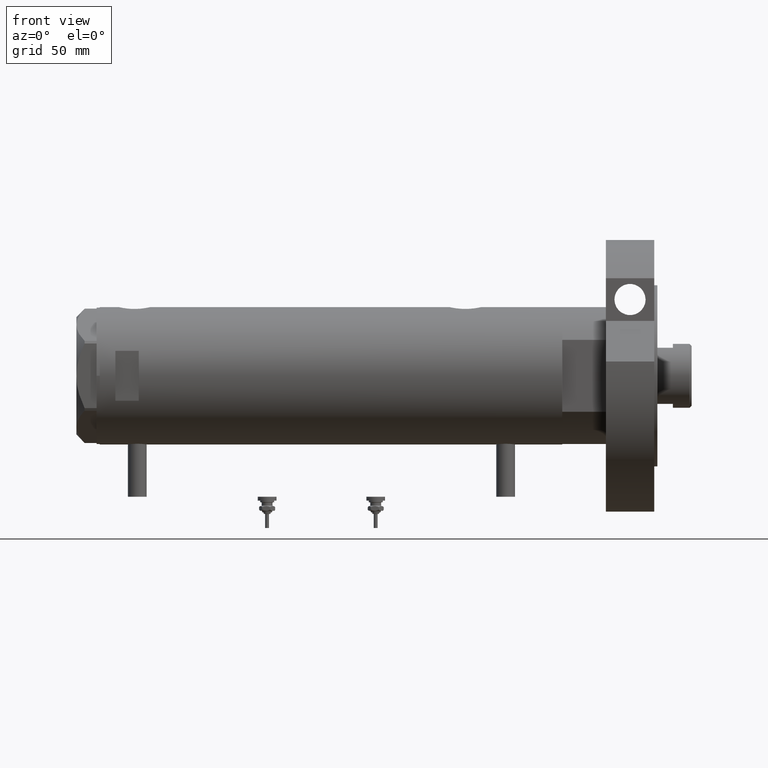
[diagram: clean part render]
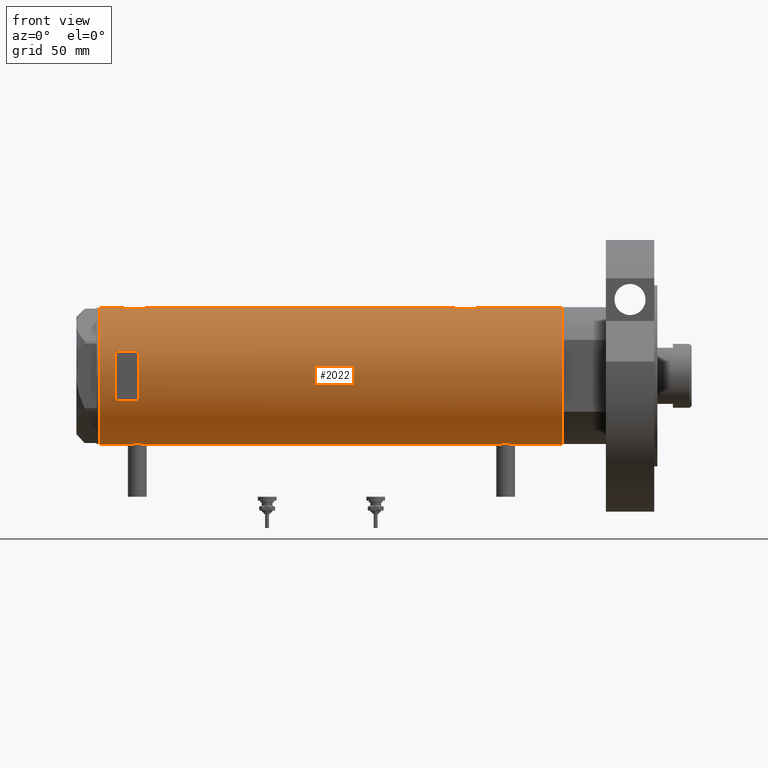
[diagram: same view with one face highlighted and labeled with its STEP entity id]
A machine part, front view. The second image highlights one B-rep face of the part: STEP entity #2022.
In plain terms, the highlighted cylindrical surface (partial cylindrical patch) has radius 44 mm, axis along (-1, -0, 0).
Its self-contained STEP definition (entity closure, byte-faithful):
#8 = CARTESIAN_POINT ( 'NONE',  ( 44.00000000000000000, -3.917104602093038540E-21, -76.10000000000000853 ) ) ;
#95 = CARTESIAN_POINT ( 'NONE',  ( -15.96871942267132027, -40.99999999999999289, 123.1999999999999744 ) ) ;
#146 = DIRECTION ( 'NONE',  ( -0.000000000000000000, 0.000000000000000000, -1.000000000000000000 ) ) ;
#147 = EDGE_CURVE ( 'NONE', #6987, #3374, #3652, .T. ) ;
#165 = CARTESIAN_POINT ( 'NONE',  ( -43.55380622335314200, -6.250277076879244831, 124.6088983339019194 ) ) ;
#167 = CARTESIAN_POINT ( 'NONE',  ( 42.84860178791323193, -9.999866241079301332, 126.2339638269416895 ) ) ;
#198 = CARTESIAN_POINT ( 'NONE',  ( -43.97029046111976669, -1.628482392291942471, 130.2375861979205354 ) ) ;
#228 = CARTESIAN_POINT ( 'NONE',  ( 43.46477581456301920, -6.845969322274847890, -93.39644460123308534 ) ) ;
#230 = CARTESIAN_POINT ( 'NONE',  ( -43.74870614644076738, -4.704745394280562820, 120.0655351265997410 ) ) ;
#259 = EDGE_CURVE ( 'NONE', #507, #5356, #5120, .T. ) ;
#288 = CARTESIAN_POINT ( 'NONE',  ( -43.95442538259509746, -2.011679190499023662, -117.8209354650977616 ) ) ;
#303 = CARTESIAN_POINT ( 'NONE',  ( 43.92391465552168484, -2.605621203777308104, -95.76018015101779213 ) ) ;
#322 = CARTESIAN_POINT ( 'NONE',  ( -43.83513771791772484, -3.820747781112549202, -106.9367898170362565 ) ) ;
#332 = CARTESIAN_POINT ( 'NONE',  ( 42.96573602780769363, -9.487415353952519226, 122.6726545541638274 ) ) ;
#336 = CARTESIAN_POINT ( 'NONE',  ( 42.84860178791321772, -9.999866241079296003, -85.76603617305838156 ) ) ;
#347 = VERTEX_POINT ( 'NONE', #6582 ) ;
#360 = CARTESIAN_POINT ( 'NONE',  ( -43.97755541524606571, -1.419649999726221967, -117.9901114392363439 ) ) ;
#373 = CARTESIAN_POINT ( 'NONE',  ( 42.89003040145177437, -9.821289533110936887, 127.8649162832999622 ) ) ;
#414 = CARTESIAN_POINT ( 'NONE',  ( 43.39114022679084570, -7.298186114522522416, 132.7441727949206438 ) ) ;
#507 = VERTEX_POINT ( 'NONE', #5698 ) ;
#636 = EDGE_CURVE ( 'NONE', #5910, #1283, #2645, .T. ) ;
#645 = EDGE_CURVE ( 'NONE', #784, #6135, #4715, .T. ) ;
#728 = CARTESIAN_POINT ( 'NONE',  ( -43.95442538259508325, -2.011679190499021885, 118.2790645349021617 ) ) ;
#759 = CARTESIAN_POINT ( 'NONE',  ( -43.91398925748692506, -2.775454910411446541, 129.8147077568106624 ) ) ;
#762 = CARTESIAN_POINT ( 'NONE',  ( 43.13833976206232990, -8.672905216733560962, 130.9203292102081377 ) ) ;
#784 = VERTEX_POINT ( 'NONE', #5398 ) ;
#796 = CARTESIAN_POINT ( 'NONE',  ( 43.85817087158034866, -3.542878095418174667, -95.45703661115521754 ) ) ;
#876 = ORIENTED_EDGE ( 'NONE', *, *, #259, .T. ) ;
#885 = CARTESIAN_POINT ( 'NONE',  ( -43.64013512596971367, -5.618144550806293047, -109.1311574562683404 ) ) ;
#895 = CARTESIAN_POINT ( 'NONE',  ( 43.80655905412561424, -4.132395729537634566, 135.0120532619376377 ) ) ;
#900 = CARTESIAN_POINT ( 'NONE',  ( 42.86761451923556621, -9.918101748202653667, -84.78132476450375066 ) ) ;
#929 = CARTESIAN_POINT ( 'NONE',  ( 42.96858625215908489, -9.471543237354838496, 129.1244477931078336 ) ) ;
#934 = CARTESIAN_POINT ( 'NONE',  ( 43.07447880731469780, -8.980869115410037296, -81.65290029795900750 ) ) ;
#958 = CARTESIAN_POINT ( 'NONE',  ( -43.55388615229803406, -6.249720082677240107, -112.3173251411198379 ) ) ;
#1070 = DIRECTION ( 'NONE',  ( 0.000000000000000000, 0.000000000000000000, 1.000000000000000000 ) ) ;
#1111 = DIRECTION ( 'NONE',  ( 0.000000000000000000, 0.000000000000000000, 1.000000000000000000 ) ) ;
#1124 = CARTESIAN_POINT ( 'NONE',  ( 44.00000000000000000, -1.726036355082439716E-15, 115.9000000000000199 ) ) ;
#1133 = EDGE_CURVE ( 'NONE', #4129, #784, #4867, .T. ) ;
#1172 = AXIS2_PLACEMENT_3D ( 'NONE', #5636, #2611, #6791 ) ;
#1189 = ORIENTED_EDGE ( 'NONE', *, *, #4840, .T. ) ;
#1214 = EDGE_CURVE ( 'NONE', #3508, #5356, #6574, .T. ) ;
#1250 = CARTESIAN_POINT ( 'NONE',  ( -43.66524845950888789, -5.422010366683132965, 121.0646195664701850 ) ) ;
#1253 = CARTESIAN_POINT ( 'NONE',  ( 44.00000000000000000, 0.000000000000000000, -148.1999999999999886 ) ) ;
#1278 = B_SPLINE_CURVE_WITH_KNOTS ( 'NONE', 3,
 ( #3736, #3164, #3202, #360, #1950, #288, #6696, #4873, #5496, #4434, #2676, #1529, #4396, #4318, #4909, #4989, #3772, #2106, #4284, #3857, #6184, #958, #3283, #5617, #2519, #1451, #6075, #6113, #885, #6617, #1411, #5534, #6736, #322, #2632, #1494, #3818, #1378, #6144, #3696, #6034, #3124, #5100 ),
 .UNSPECIFIED., .F., .F.,
 ( 4, 2, 2, 1, 2, 2, 2, 2, 2, 2, 2, 2, 2, 2, 2, 2, 2, 2, 2, 2, 2, 4 ),
 ( 0.01956509074799517994, 0.02078761141254040559, 0.02139887174481301668, 0.02201013207708563124, 0.02262139240935824580, 0.02323265274163085689, 0.02445517340617610336, 0.02567769407072134982, 0.02690021473526659629, 0.02751147506753922126, 0.02812273539981184622, 0.02934525606435713085, 0.03056777672890241548, 0.03117903706117506127, 0.03179029739344770011, 0.03301281805799302638, 0.03423533872253835264, 0.03545785938708367196, 0.03668038005162899129, 0.03729164038390166136, 0.03790290071617432449, 0.03912542138071965075 ),
 .UNSPECIFIED. ) ;
#1282 = CARTESIAN_POINT ( 'NONE',  ( -43.57664920749031978, -6.089110472216502146, 122.7763691313058985 ) ) ;
#1283 = VERTEX_POINT ( 'NONE', #1960 ) ;
#1284 = CARTESIAN_POINT ( 'NONE',  ( 43.46477581456304051, -6.845969322274839008, 118.6035553987669147 ) ) ;
#1318 = CARTESIAN_POINT ( 'NONE',  ( -43.64064219598290606, -5.614224114468902904, 121.4231451038052683 ) ) ;
#1319 = CARTESIAN_POINT ( 'NONE',  ( 43.07447880731469780, -8.980869115410031966, 130.3470997020410209 ) ) ;
#1359 = CARTESIAN_POINT ( 'NONE',  ( 42.92612181419237771, -9.662173761604313071, 128.4979978960971323 ) ) ;
#1378 = CARTESIAN_POINT ( 'NONE',  ( -43.95404166778755695, -2.020054257598466574, -105.9819105451434638 ) ) ;
#1389 = CARTESIAN_POINT ( 'NONE',  ( 42.86369059155249772, -9.935849517229277339, -87.40637410018203468 ) ) ;
#1391 = CARTESIAN_POINT ( 'NONE',  ( -43.97755541524607992, -1.419649999726221745, 118.1098885607636646 ) ) ;
#1407 = DIRECTION ( 'NONE',  ( 0.000000000000000000, 0.000000000000000000, 1.000000000000000000 ) ) ;
#1411 = CARTESIAN_POINT ( 'NONE',  ( -43.71863308610073773, -4.973248429199020215, -108.0926220987882687 ) ) ;
#1451 = CARTESIAN_POINT ( 'NONE',  ( -43.58327167020068060, -6.041691433183235205, -110.2867244921663428 ) ) ;
#1469 = CARTESIAN_POINT ( 'NONE',  ( 43.80655905412562134, -4.132395729537634566, -76.98794673806234812 ) ) ;
#1494 = CARTESIAN_POINT ( 'NONE',  ( -43.91398925748691084, -2.775454910411443876, -106.2852922431893319 ) ) ;
#1505 = CARTESIAN_POINT ( 'NONE',  ( 44.00000000000000000, -3.917205576288906830E-21, 135.9000000000000341 ) ) ;
#1509 = CARTESIAN_POINT ( 'NONE',  ( 43.13833976206232990, -8.672905216733550304, -81.07967078979186226 ) ) ;
#1529 = CARTESIAN_POINT ( 'NONE',  ( -43.80686114384900520, -4.128296917151112133, -116.6101585512831207 ) ) ;
#1546 = CARTESIAN_POINT ( 'NONE',  ( 43.77905627191558580, -4.445085099228550440, -95.08140834316036205 ) ) ;
#1549 = VERTEX_POINT ( 'NONE', #5899 ) ;
#1560 = EDGE_CURVE ( 'NONE', #1549, #4872, #1278, .T. ) ;
#1573 = CARTESIAN_POINT ( 'NONE',  ( -44.00000000000000000, 4.742435893011557518E-16, -105.6499999999999915 ) ) ;
#1582 = ORIENTED_EDGE ( 'NONE', *, *, #5455, .T. ) ;
#1688 = DIRECTION ( 'NONE',  ( 1.000000000000000000, 0.000000000000000000, 0.000000000000000000 ) ) ;
#1776 = LINE ( 'NONE', #6404, #2167 ) ;
#1792 = AXIS2_PLACEMENT_3D ( 'NONE', #7089, #7132, #5966 ) ;
#1821 = CARTESIAN_POINT ( 'NONE',  ( -43.58327167020067350, -6.041691433183231652, 125.8132755078336658 ) ) ;
#1864 = CARTESIAN_POINT ( 'NONE',  ( 43.50370990764397305, -6.606474645717115735, 133.4352093528489149 ) ) ;
#1893 = CARTESIAN_POINT ( 'NONE',  ( -43.83513771791772484, -3.820747781112540764, 129.1632101829637236 ) ) ;
#1896 = CARTESIAN_POINT ( 'NONE',  ( 43.88203303552249679, -3.235230624304762603, 116.4320738693601811 ) ) ;
#1908 = LINE ( 'NONE', #4239, #5329 ) ;
#1941 = AXIS2_PLACEMENT_3D ( 'NONE', #5778, #1070, #1688 ) ;
#1950 = CARTESIAN_POINT ( 'NONE',  ( -43.97059312650996787, -1.620278982928820888, -117.9397869138586827 ) ) ;
#1952 = DIRECTION ( 'NONE',  ( 0.000000000000000000, 0.000000000000000000, 1.000000000000000000 ) ) ;
#1960 = CARTESIAN_POINT ( 'NONE',  ( 44.00000000000000000, 0.000000000000000000, 148.1999999999999886 ) ) ;
#1972 = CARTESIAN_POINT ( 'NONE',  ( -43.57636709704393496, -6.091127289750671636, 125.6149932566098215 ) ) ;
#2004 = CARTESIAN_POINT ( 'NONE',  ( 42.92612181419234219, -9.662173761604309519, -83.50200210390283928 ) ) ;
#2022 = ADVANCED_FACE ( 'NONE', ( #3875, #4414 ), #6089, .T. ) ;
#2041 = CARTESIAN_POINT ( 'NONE',  ( 43.24269204559829660, -8.130405600641545050, -80.26885497193008234 ) ) ;
#2080 = CARTESIAN_POINT ( 'NONE',  ( 43.99999999999998579, -0.6628808997490075461, 115.8999999999999915 ) ) ;
#2106 = CARTESIAN_POINT ( 'NONE',  ( -43.59994860325051036, -5.920144153815573240, -113.9140635756975968 ) ) ;
#2121 = CARTESIAN_POINT ( 'NONE',  ( 43.77763691689009562, -4.427538730370028652, 134.8724271220806656 ) ) ;
#2125 = CARTESIAN_POINT ( 'NONE',  ( 43.35257225115238811, -7.523216248090025537, -92.69605303592345535 ) ) ;
#2133 = ORIENTED_EDGE ( 'NONE', *, *, #3137, .F. ) ;
#2167 = VECTOR ( 'NONE', #2917, 1000.000000000000000 ) ;
#2273 = ORIENTED_EDGE ( 'NONE', *, *, #5634, .F. ) ;
#2347 = CARTESIAN_POINT ( 'NONE',  ( 44.00000000000000000, -0.6537011444665536963, -76.10000000000002274 ) ) ;
#2390 = CARTESIAN_POINT ( 'NONE',  ( -43.55388615229802696, -6.249720082677238331, 123.7826748588801564 ) ) ;
#2427 = CARTESIAN_POINT ( 'NONE',  ( -43.83572624786196315, -3.813948911733267888, 119.2316356977933651 ) ) ;
#2466 = CARTESIAN_POINT ( 'NONE',  ( -43.80686114384899810, -4.128296917151109469, 119.4898414487168878 ) ) ;
#2468 = CARTESIAN_POINT ( 'NONE',  ( 43.77905627191559290, -4.445085099228545111, 116.9185916568396806 ) ) ;
#2499 = CARTESIAN_POINT ( 'NONE',  ( -43.97729452866926891, -1.427712738744846055, 130.2882290744342981 ) ) ;
#2502 = CARTESIAN_POINT ( 'NONE',  ( 42.86369059155248351, -9.935849517229273786, 124.5936258998180222 ) ) ;
#2503 = DIRECTION ( 'NONE',  ( -1.000000000000000000, 0.000000000000000000, 0.000000000000000000 ) ) ;
#2519 = CARTESIAN_POINT ( 'NONE',  ( -43.57636709704394917, -6.091127289750676077, -110.4850067433901586 ) ) ;
#2536 = CARTESIAN_POINT ( 'NONE',  ( 43.77763691689010273, -4.427538730370040199, -77.12757287791932015 ) ) ;
#2578 = CARTESIAN_POINT ( 'NONE',  ( 42.85249883256043546, -9.983208936152868418, -85.43427783458179192 ) ) ;
#2584 = EDGE_CURVE ( 'NONE', #6135, #5477, #1776, .T. ) ;
#2603 = CARTESIAN_POINT ( 'NONE',  ( 44.00000000000000000, -1.726036355082439716E-15, 115.9000000000000199 ) ) ;
#2611 = DIRECTION ( 'NONE',  ( 0.000000000000000000, 0.000000000000000000, 1.000000000000000000 ) ) ;
#2613 = CARTESIAN_POINT ( 'NONE',  ( 43.39001814939470592, -7.304817421876465211, -92.93703460671677874 ) ) ;
#2632 = CARTESIAN_POINT ( 'NONE',  ( -43.88932649443422918, -3.137583818903199262, -106.4790096194045788 ) ) ;
#2645 = CIRCLE ( 'NONE', #1792, 44.00000000000000000 ) ;
#2676 = CARTESIAN_POINT ( 'NONE',  ( -43.83572624786197025, -3.813948911733268776, -116.8683643022066150 ) ) ;
#2692 = CARTESIAN_POINT ( 'NONE',  ( 43.98543813568862504, -1.304985013906734048, 135.8365306627388236 ) ) ;
#2697 = CARTESIAN_POINT ( 'NONE',  ( 43.13689707656756411, -8.680169016269173810, -91.10836902111202562 ) ) ;
#2817 = CIRCLE ( 'NONE', #3771, 44.00000000000000000 ) ;
#2850 = EDGE_LOOP ( 'NONE', ( #2133, #1189, #876, #4011, #1582, #4285, #6853, #4203, #2985, #5027, #7499, #5960 ) ) ;
#2917 = DIRECTION ( 'NONE',  ( -0.000000000000000000, -0.000000000000000000, -1.000000000000000000 ) ) ;
#2956 = VERTEX_POINT ( 'NONE', #4709 ) ;
#2969 = DIRECTION ( 'NONE',  ( 0.000000000000000000, 0.000000000000000000, 1.000000000000000000 ) ) ;
#2985 = ORIENTED_EDGE ( 'NONE', *, *, #4894, .F. ) ;
#3035 = CARTESIAN_POINT ( 'NONE',  ( -43.55981666146649900, -6.208773019004407701, 123.3756200080638195 ) ) ;
#3039 = CARTESIAN_POINT ( 'NONE',  ( 43.39001814939471302, -7.304817421876452777, 119.0629653932832497 ) ) ;
#3071 = CARTESIAN_POINT ( 'NONE',  ( -43.94477385411916259, -2.211843467998029222, 130.0490722992286408 ) ) ;
#3072 = CARTESIAN_POINT ( 'NONE',  ( 43.92776409818819872, -2.602555515054473467, 135.5780334928707589 ) ) ;
#3103 = CARTESIAN_POINT ( 'NONE',  ( 43.94187300917954531, -2.283844398366611905, -95.84126046817046074 ) ) ;
#3105 = CARTESIAN_POINT ( 'NONE',  ( -44.00000000000000000, 5.388445781982983516E-15, 117.9500000000000028 ) ) ;
#3124 = CARTESIAN_POINT ( 'NONE',  ( -44.00000000000000711, -0.4134142287044808017, -105.6500000000000057 ) ) ;
#3137 = EDGE_CURVE ( 'NONE', #347, #1549, #6666, .T. ) ;
#3164 = CARTESIAN_POINT ( 'NONE',  ( -44.00000000000001421, -0.4080709675389184166, -118.1500000000000341 ) ) ;
#3182 = CARTESIAN_POINT ( 'NONE',  ( 43.39114022679083860, -7.298186114522535739, -79.25582720507938461 ) ) ;
#3202 = CARTESIAN_POINT ( 'NONE',  ( -43.99432382855034973, -0.8140126287075730716, -118.1104216681691526 ) ) ;
#3214 = CARTESIAN_POINT ( 'NONE',  ( 42.85249883256044257, -9.983208936152875523, 126.5657221654182791 ) ) ;
#3221 = CARTESIAN_POINT ( 'NONE',  ( -43.99999999999999289, -0.4134142287044815789, 130.4500000000000455 ) ) ;
#3260 = CARTESIAN_POINT ( 'NONE',  ( 43.07321175413309788, -8.986876637256990819, -90.53428201988754154 ) ) ;
#3283 = CARTESIAN_POINT ( 'NONE',  ( -43.55380622335315621, -6.250277076879243943, -111.4911016660981176 ) ) ;
#3296 = CARTESIAN_POINT ( 'NONE',  ( 43.71528002050701645, -5.005885132985630648, 134.5630630671448955 ) ) ;
#3374 = VERTEX_POINT ( 'NONE', #4071 ) ;
#3419 = CARTESIAN_POINT ( 'NONE',  ( 44.00000000000000000, 0.000000000000000000, -148.1999999999999886 ) ) ;
#3456 = CARTESIAN_POINT ( 'NONE',  ( -44.00000000000000000, 5.388445916248353619E-15, 148.1999999999999886 ) ) ;
#3505 = EDGE_CURVE ( 'NONE', #2956, #1283, #4949, .T. ) ;
#3508 = VERTEX_POINT ( 'NONE', #5581 ) ;
#3529 = VECTOR ( 'NONE', #1111, 1000.000000000000000 ) ;
#3571 = CARTESIAN_POINT ( 'NONE',  ( -43.88927795770376150, -3.124736516396337205, 118.7833259507619630 ) ) ;
#3597 = ORIENTED_EDGE ( 'NONE', *, *, #645, .F. ) ;
#3607 = CARTESIAN_POINT ( 'NONE',  ( 43.57790701154752355, -6.104591320335862825, 133.8474130089493315 ) ) ;
#3634 = EDGE_CURVE ( 'NONE', #4872, #6987, #1908, .T. ) ;
#3652 = B_SPLINE_CURVE_WITH_KNOTS ( 'NONE', 3,
 ( #3105, #5430, #7229, #1391, #4717, #728, #5880, #5284, #3571, #5316, #2427, #2466, #230, #4754, #1250, #1318, #5395, #4189, #6516, #1282, #3035, #2390, #165, #4852, #1972, #1821, #7073, #6595, #4786, #4259, #4303, #7148, #6633, #1893, #5983, #759, #3071, #7188, #198, #2499, #4819, #3221, #6207 ),
 .UNSPECIFIED., .F., .F.,
 ( 4, 2, 2, 1, 2, 2, 2, 2, 2, 2, 2, 2, 2, 2, 2, 2, 2, 2, 2, 2, 2, 4 ),
 ( 0.01956509074799516260, 0.02078761141254046457, 0.02139887174481311383, 0.02201013207708576655, 0.02262139240935841580, 0.02323265274163106506, 0.02445517340617638785, 0.02567769407072171411, 0.02690021473526703691, 0.02751147506753969657, 0.02812273539981235970, 0.02934525606435772760, 0.03056777672890308856, 0.03117903706117573087, 0.03179029739344837319, 0.03301281805799358149, 0.03423533872253878979, 0.03545785938708399809, 0.03668038005162919946, 0.03729164038390180014, 0.03790290071617440082, 0.03912542138071962300 ),
 .UNSPECIFIED. ) ;
#3659 = DIRECTION ( 'NONE',  ( 1.000000000000000000, 0.000000000000000000, 0.000000000000000000 ) ) ;
#3696 = CARTESIAN_POINT ( 'NONE',  ( -43.97729452866927602, -1.427712738744854715, -105.8117709255657815 ) ) ;
#3698 = CARTESIAN_POINT ( 'NONE',  ( 44.00000000000000000, 0.000000000000000000, -148.1999999999999886 ) ) ;
#3736 = CARTESIAN_POINT ( 'NONE',  ( -44.00000000000000000, 5.388445781982983516E-15, -118.1500000000000057 ) ) ;
#3771 = AXIS2_PLACEMENT_3D ( 'NONE', #4855, #6556, #2503 ) ;
#3772 = CARTESIAN_POINT ( 'NONE',  ( -43.60943079847655213, -5.850114217193378430, -114.1092187592660849 ) ) ;
#3790 = CARTESIAN_POINT ( 'NONE',  ( -15.96871942267132027, -40.99999999999999289, 138.1999999999999886 ) ) ;
#3796 = CARTESIAN_POINT ( 'NONE',  ( 43.57790701154753066, -6.104591320335878812, -78.15258699105068274 ) ) ;
#3818 = CARTESIAN_POINT ( 'NONE',  ( -43.94477385411916970, -2.211843467998029666, -106.0509277007713678 ) ) ;
#3826 = EDGE_LOOP ( 'NONE', ( #2273, #4074, #3597, #4818 ) ) ;
#3827 = CARTESIAN_POINT ( 'NONE',  ( -44.00000000000000000, 5.388445916248353619E-15, -148.1999999999999886 ) ) ;
#3829 = CARTESIAN_POINT ( 'NONE',  ( 43.99999999999999289, -0.6537011444665495885, 135.9000000000000341 ) ) ;
#3835 = CARTESIAN_POINT ( 'NONE',  ( 43.35323102813806173, -7.519449998269473134, -79.49957710715735004 ) ) ;
#3857 = CARTESIAN_POINT ( 'NONE',  ( -43.57664920749031978, -6.089110472216501257, -113.3236308686941385 ) ) ;
#3871 = CARTESIAN_POINT ( 'NONE',  ( 43.27861175590269482, -7.937636171351966752, 119.8089713200900661 ) ) ;
#3873 = VECTOR ( 'NONE', #1407, 1000.000000000000000 ) ;
#3875 = FACE_OUTER_BOUND ( 'NONE', #2850, .T. ) ;
#3877 = CARTESIAN_POINT ( 'NONE',  ( 43.24192112218942441, -8.134529092006102857, -91.92552229864112689 ) ) ;
#4011 = ORIENTED_EDGE ( 'NONE', *, *, #1214, .F. ) ;
#4071 = CARTESIAN_POINT ( 'NONE',  ( -44.00000000000000000, 3.205170455528113082E-15, 130.4500000000000171 ) ) ;
#4074 = ORIENTED_EDGE ( 'NONE', *, *, #2584, .F. ) ;
#4129 = VERTEX_POINT ( 'NONE', #6220 ) ;
#4189 = CARTESIAN_POINT ( 'NONE',  ( -43.59994860325049615, -5.920144153815568799, 122.1859364243023549 ) ) ;
#4190 = CARTESIAN_POINT ( 'NONE',  ( 43.24269204559828239, -8.130405600641548602, 131.7311450280699034 ) ) ;
#4203 = ORIENTED_EDGE ( 'NONE', *, *, #636, .F. ) ;
#4239 = CARTESIAN_POINT ( 'NONE',  ( -44.00000000000000000, 5.388445916248353619E-15, -148.1999999999999886 ) ) ;
#4259 = CARTESIAN_POINT ( 'NONE',  ( -43.66469451360047316, -5.426465874727615990, 127.3277459186421225 ) ) ;
#4261 = CARTESIAN_POINT ( 'NONE',  ( 43.57553740812844723, -6.102230194686611320, 117.9710034401132788 ) ) ;
#4284 = CARTESIAN_POINT ( 'NONE',  ( -43.58358352828439308, -6.039443007521657414, -113.5216309838574347 ) ) ;
#4285 = ORIENTED_EDGE ( 'NONE', *, *, #4407, .F. ) ;
#4303 = CARTESIAN_POINT ( 'NONE',  ( -43.71863308610075194, -4.973248429199021992, 128.0073779012117257 ) ) ;
#4318 = CARTESIAN_POINT ( 'NONE',  ( -43.71916086763248899, -4.968610719017467758, -115.7133599885462871 ) ) ;
#4332 = CARTESIAN_POINT ( 'NONE',  ( 43.92776409818817740, -2.602555515054471247, -76.42196650712921269 ) ) ;
#4375 = CARTESIAN_POINT ( 'NONE',  ( 43.61181667275830165, -5.838254419127787642, -94.22544109417493985 ) ) ;
#4396 = CARTESIAN_POINT ( 'NONE',  ( -43.74870614644074607, -4.704745394280565485, -116.0344648734002249 ) ) ;
#4407 = EDGE_CURVE ( 'NONE', #2956, #4677, #6260, .T. ) ;
#4414 = FACE_BOUND ( 'NONE', #3826, .T. ) ;
#4417 = CARTESIAN_POINT ( 'NONE',  ( 43.27861175590267351, -7.937636171351966752, -92.19102867990994810 ) ) ;
#4434 = CARTESIAN_POINT ( 'NONE',  ( -43.87623998657198143, -3.302247739865014964, -117.2103434351974443 ) ) ;
#4448 = CARTESIAN_POINT ( 'NONE',  ( 43.27890888111423351, -7.936045294464974198, -80.00681563342807578 ) ) ;
#4624 = LINE ( 'NONE', #7483, #3529 ) ;
#4667 = CARTESIAN_POINT ( 'NONE',  ( 43.98543813568861083, -1.304985013906736491, -76.16346933726120483 ) ) ;
#4677 = VERTEX_POINT ( 'NONE', #2603 ) ;
#4709 = CARTESIAN_POINT ( 'NONE',  ( 44.00000000000000000, -3.917205576288906830E-21, 135.9000000000000341 ) ) ;
#4715 = CIRCLE ( 'NONE', #7060, 44.00000000000000000 ) ;
#4717 = CARTESIAN_POINT ( 'NONE',  ( -43.97059312650997498, -1.620278982928819778, 118.1602130861413116 ) ) ;
#4754 = CARTESIAN_POINT ( 'NONE',  ( -43.71916086763250320, -4.968610719017469535, 120.3866400114537782 ) ) ;
#4786 = CARTESIAN_POINT ( 'NONE',  ( -43.64013512596971367, -5.618144550806302817, 126.9688425437316681 ) ) ;
#4788 = CARTESIAN_POINT ( 'NONE',  ( 43.85817087158036287, -3.542878095418166229, 116.5429633888447682 ) ) ;
#4818 = ORIENTED_EDGE ( 'NONE', *, *, #1133, .F. ) ;
#4819 = CARTESIAN_POINT ( 'NONE',  ( -43.99417593155911987, -0.8219945290704597785, 130.4093810241296012 ) ) ;
#4820 = CARTESIAN_POINT ( 'NONE',  ( 43.24192112218942441, -8.134529092006102857, 120.0744777013589299 ) ) ;
#4833 = CARTESIAN_POINT ( 'NONE',  ( 0.000000000000000000, 0.000000000000000000, 138.1999999999999886 ) ) ;
#4837 = VECTOR ( 'NONE', #5456, 1000.000000000000000 ) ;
#4840 = EDGE_CURVE ( 'NONE', #347, #507, #4976, .T. ) ;
#4850 = CARTESIAN_POINT ( 'NONE',  ( 43.98503203903424463, -1.316644100880403956, -96.03472955295633540 ) ) ;
#4852 = CARTESIAN_POINT ( 'NONE',  ( -43.55964145621772587, -6.209995197331128480, 125.0152361338357565 ) ) ;
#4855 = CARTESIAN_POINT ( 'NONE',  ( 0.000000000000000000, 0.000000000000000000, 123.1999999999999744 ) ) ;
#4860 = VECTOR ( 'NONE', #2969, 1000.000000000000000 ) ;
#4867 = LINE ( 'NONE', #4942, #3873 ) ;
#4872 = VERTEX_POINT ( 'NONE', #1573 ) ;
#4873 = CARTESIAN_POINT ( 'NONE',  ( -43.91347832647110039, -2.763895659397271665, -117.5093864937758497 ) ) ;
#4891 = CARTESIAN_POINT ( 'NONE',  ( 43.50208939911752992, -6.605519787823897815, -93.61487246254432648 ) ) ;
#4894 = EDGE_CURVE ( 'NONE', #3374, #5910, #4624, .T. ) ;
#4909 = CARTESIAN_POINT ( 'NONE',  ( -43.66524845950890210, -5.422010366683132965, -115.0353804335297809 ) ) ;
#4922 = CARTESIAN_POINT ( 'NONE',  ( 43.99999999999999289, -0.6628808997490059918, -96.10000000000000853 ) ) ;
#4942 = CARTESIAN_POINT ( 'NONE',  ( 15.96871942267132027, -40.99999999999999289, -148.1999999999999886 ) ) ;
#4949 = LINE ( 'NONE', #3698, #4837 ) ;
#4962 = CARTESIAN_POINT ( 'NONE',  ( 43.94187300917954531, -2.283844398366604800, 116.1587395318295250 ) ) ;
#4966 = CARTESIAN_POINT ( 'NONE',  ( 42.84850870634926423, -10.00026508230968503, -86.75583915121745804 ) ) ;
#4976 = CIRCLE ( 'NONE', #1941, 44.00000000000000000 ) ;
#4989 = CARTESIAN_POINT ( 'NONE',  ( -43.64064219598290606, -5.614224114468902904, -114.6768548961947261 ) ) ;
#5007 = CARTESIAN_POINT ( 'NONE',  ( 42.92195198079053142, -9.681069926205541520, 123.3106749909349134 ) ) ;
#5027 = ORIENTED_EDGE ( 'NONE', *, *, #147, .F. ) ;
#5085 = DIRECTION ( 'NONE',  ( 0.000000000000000000, 0.000000000000000000, 1.000000000000000000 ) ) ;
#5096 = CARTESIAN_POINT ( 'NONE',  ( 44.00000000000000000, -2.552687571866728611E-15, -96.10000000000000853 ) ) ;
#5100 = CARTESIAN_POINT ( 'NONE',  ( -44.00000000000000000, 4.742435893011557518E-16, -105.6499999999999915 ) ) ;
#5120 = LINE ( 'NONE', #3419, #6660 ) ;
#5284 = CARTESIAN_POINT ( 'NONE',  ( -43.91347832647110039, -2.763895659397270776, 118.5906135062241589 ) ) ;
#5316 = CARTESIAN_POINT ( 'NONE',  ( -43.87623998657198143, -3.302247739865014964, 118.8896565648025785 ) ) ;
#5321 = LINE ( 'NONE', #1253, #4860 ) ;
#5329 = VECTOR ( 'NONE', #1952, 1000.000000000000000 ) ;
#5356 = VERTEX_POINT ( 'NONE', #5096 ) ;
#5360 = CARTESIAN_POINT ( 'NONE',  ( 42.99316244204496229, -9.359736474891649394, 129.4360302003217669 ) ) ;
#5382 = CARTESIAN_POINT ( 'NONE',  ( -44.00000000000000000, 5.388445781982983516E-15, 117.9500000000000028 ) ) ;
#5395 = CARTESIAN_POINT ( 'NONE',  ( -43.60943079847653792, -5.850114217193379318, 121.9907812407339378 ) ) ;
#5396 = CARTESIAN_POINT ( 'NONE',  ( 42.84850870634925002, -10.00026508230968325, 125.2441608487825988 ) ) ;
#5398 = CARTESIAN_POINT ( 'NONE',  ( 15.96871942267132027, -40.99999999999999289, 138.1999999999999886 ) ) ;
#5430 = CARTESIAN_POINT ( 'NONE',  ( -44.00000000000001421, -0.4080709675389180835, 117.9500000000000171 ) ) ;
#5444 = VECTOR ( 'NONE', #6746, 1000.000000000000000 ) ;
#5455 = EDGE_CURVE ( 'NONE', #3508, #4677, #5321, .T. ) ;
#5456 = DIRECTION ( 'NONE',  ( 0.000000000000000000, 0.000000000000000000, 1.000000000000000000 ) ) ;
#5477 = VERTEX_POINT ( 'NONE', #95 ) ;
#5496 = CARTESIAN_POINT ( 'NONE',  ( -43.88927795770375440, -3.124736516396337649, -117.3166740492380598 ) ) ;
#5534 = CARTESIAN_POINT ( 'NONE',  ( -43.74813644611199948, -4.709999724143497879, -107.7715595605677095 ) ) ;
#5555 = CARTESIAN_POINT ( 'NONE',  ( 42.99316244204495518, -9.359736474891656499, -82.56396979967827576 ) ) ;
#5581 = CARTESIAN_POINT ( 'NONE',  ( 44.00000000000000000, -3.917104602093038540E-21, -76.10000000000000853 ) ) ;
#5590 = CARTESIAN_POINT ( 'NONE',  ( 43.88549648731375896, -3.229309612650777872, 135.3866430248638437 ) ) ;
#5617 = CARTESIAN_POINT ( 'NONE',  ( -43.55964145621772587, -6.209995197331129368, -111.0847638661642947 ) ) ;
#5633 = CARTESIAN_POINT ( 'NONE',  ( 43.71626298452614634, -5.019105827807306852, 117.2258656202040470 ) ) ;
#5634 = EDGE_CURVE ( 'NONE', #5477, #4129, #2817, .T. ) ;
#5636 = CARTESIAN_POINT ( 'NONE',  ( 0.000000000000000000, 0.000000000000000000, -148.1999999999999886 ) ) ;
#5698 = CARTESIAN_POINT ( 'NONE',  ( 44.00000000000000000, 0.000000000000000000, -148.1999999999999886 ) ) ;
#5778 = CARTESIAN_POINT ( 'NONE',  ( 0.000000000000000000, 0.000000000000000000, -148.1999999999999886 ) ) ;
#5880 = CARTESIAN_POINT ( 'NONE',  ( -43.93596008603758918, -2.395372424984029802, 118.4165081946938756 ) ) ;
#5899 = CARTESIAN_POINT ( 'NONE',  ( -44.00000000000000000, 5.388445781982983516E-15, -118.1500000000000057 ) ) ;
#5910 = VERTEX_POINT ( 'NONE', #3456 ) ;
#5951 = CARTESIAN_POINT ( 'NONE',  ( 43.35323102813806173, -7.519449998269469582, 132.5004228928426642 ) ) ;
#5960 = ORIENTED_EDGE ( 'NONE', *, *, #1560, .F. ) ;
#5966 = DIRECTION ( 'NONE',  ( 1.000000000000000000, 0.000000000000000000, 0.000000000000000000 ) ) ;
#5983 = CARTESIAN_POINT ( 'NONE',  ( -43.88932649443425049, -3.137583818903188160, 129.6209903805954866 ) ) ;
#6034 = CARTESIAN_POINT ( 'NONE',  ( -43.99417593155912698, -0.8219945290704717689, -105.6906189758703931 ) ) ;
#6053 = CARTESIAN_POINT ( 'NONE',  ( 43.88203303552248968, -3.235230624304769709, -95.56792613063983310 ) ) ;
#6075 = CARTESIAN_POINT ( 'NONE',  ( -43.59959777593760322, -5.922725608094071781, -109.8935068878258079 ) ) ;
#6089 = CYLINDRICAL_SURFACE ( 'NONE', #1172, 44.00000000000000000 ) ;
#6092 = CARTESIAN_POINT ( 'NONE',  ( 42.96858625215907779, -9.471543237354833167, -82.87555220689219482 ) ) ;
#6113 = CARTESIAN_POINT ( 'NONE',  ( -43.60904414879379942, -5.852991024272603759, -109.6984368334709075 ) ) ;
#6129 = CARTESIAN_POINT ( 'NONE',  ( 43.71528002050701645, -5.005885132985640418, -77.43693693285514712 ) ) ;
#6135 = VERTEX_POINT ( 'NONE', #3790 ) ;
#6144 = CARTESIAN_POINT ( 'NONE',  ( -43.97029046111977379, -1.628482392291957126, -105.8624138020794447 ) ) ;
#6160 = CARTESIAN_POINT ( 'NONE',  ( 42.89003040145178147, -9.821289533110931558, -84.13508371670005204 ) ) ;
#6184 = CARTESIAN_POINT ( 'NONE',  ( -43.55981666146650610, -6.208773019004409477, -112.7243799919361606 ) ) ;
#6201 = CARTESIAN_POINT ( 'NONE',  ( 43.61181667275830875, -5.838254419127776096, 117.7745589058250744 ) ) ;
#6207 = CARTESIAN_POINT ( 'NONE',  ( -44.00000000000000000, 3.205170455528113082E-15, 130.4500000000000171 ) ) ;
#6220 = CARTESIAN_POINT ( 'NONE',  ( 15.96871942267132027, -40.99999999999999289, 123.1999999999999744 ) ) ;
#6260 = B_SPLINE_CURVE_WITH_KNOTS ( 'NONE', 3,
 ( #1505, #3829, #2692, #3072, #5590, #895, #2121, #3296, #7114, #3607, #1864, #414, #5951, #7191, #4190, #762, #1319, #5360, #929, #1359, #373, #6748, #3214, #167, #5396, #2502, #5007, #332, #7150, #6517, #4820, #3871, #7377, #3039, #1284, #6786, #4261, #6201, #5633, #2468, #4788, #1896, #6597, #4962, #7335, #2080, #1124 ),
 .UNSPECIFIED., .F., .F.,
 ( 4, 2, 2, 2, 2, 2, 2, 2, 2, 2, 1, 2, 2, 2, 2, 2, 2, 2, 2, 2, 2, 2, 2, 4 ),
 ( 0.03136730421198213187, 0.03332724096696802751, 0.03528717772195392316, 0.03626714609944686751, 0.03724711447693981187, 0.03920705123192570751, 0.04018701960941865881, 0.04116698798691159622, 0.04312692474189755432, 0.04410689311939049867, 0.04508686149688344302, 0.04606682987437638044, 0.04704679825186932479, 0.04900673500685520656, 0.05096667176184109527, 0.05292660851682697010, 0.05390657689431993527, 0.05488654527181288656, 0.05586651364930585173, 0.05684648202679880302, 0.05880641878178471949, 0.05978638715927768466, 0.06076635553677064983, 0.06272629229175658017 ),
 .UNSPECIFIED. ) ;
#6404 = CARTESIAN_POINT ( 'NONE',  ( -15.96871942267132027, -40.99999999999999289, -148.1999999999999886 ) ) ;
#6516 = CARTESIAN_POINT ( 'NONE',  ( -43.58358352828439308, -6.039443007521653861, 122.5783690161426023 ) ) ;
#6517 = CARTESIAN_POINT ( 'NONE',  ( 43.13689707656755701, -8.680169016269175586, 120.8916309788880312 ) ) ;
#6556 = DIRECTION ( 'NONE',  ( 0.000000000000000000, 0.000000000000000000, 1.000000000000000000 ) ) ;
#6574 = B_SPLINE_CURVE_WITH_KNOTS ( 'NONE', 3,
 ( #8, #2347, #4667, #4332, #6711, #1469, #2536, #6129, #7381, #3796, #6752, #3182, #3835, #4448, #2041, #1509, #934, #5555, #6092, #2004, #6160, #900, #2578, #336, #4966, #1389, #6670, #7340, #3260, #2697, #3877, #4417, #2125, #2613, #228, #4891, #6795, #4375, #7264, #1546, #796, #6053, #303, #3103, #4850, #4922, #6631 ),
 .UNSPECIFIED., .F., .F.,
 ( 4, 2, 2, 2, 2, 2, 2, 2, 2, 2, 1, 2, 2, 2, 2, 2, 2, 2, 2, 2, 2, 2, 2, 4 ),
 ( 0.03136730421198213881, 0.03332724096696802751, 0.03528717772195391622, 0.03626714609944684670, 0.03724711447693978411, 0.03920705123192565894, 0.04018701960941859636, 0.04116698798691152683, 0.04312692474189736697, 0.04410689311939030438, 0.04508686149688324180, 0.04606682987437617921, 0.04704679825186912356, 0.04900673500685504003, 0.05096667176184094955, 0.05292660851682686601, 0.05390657689431983812, 0.05488654527181281717, 0.05586651364930578928, 0.05684648202679876139, 0.05880641878178470561, 0.05978638715927767078, 0.06076635553677063595, 0.06272629229175656629 ),
 .UNSPECIFIED. ) ;
#6582 = CARTESIAN_POINT ( 'NONE',  ( -44.00000000000000000, 5.388445916248353619E-15, -148.1999999999999886 ) ) ;
#6595 = CARTESIAN_POINT ( 'NONE',  ( -43.60904414879379942, -5.852991024272610865, 126.4015631665290300 ) ) ;
#6597 = CARTESIAN_POINT ( 'NONE',  ( 43.92391465552169194, -2.605621203777300554, 116.2398198489821937 ) ) ;
#6617 = CARTESIAN_POINT ( 'NONE',  ( -43.66469451360045895, -5.426465874727613325, -108.7722540813579002 ) ) ;
#6631 = CARTESIAN_POINT ( 'NONE',  ( 44.00000000000000000, -2.552687571866728611E-15, -96.10000000000000853 ) ) ;
#6633 = CARTESIAN_POINT ( 'NONE',  ( -43.80623767923740530, -4.134861581628529237, 128.9043636726069337 ) ) ;
#6660 = VECTOR ( 'NONE', #5085, 1000.000000000000000 ) ;
#6666 = LINE ( 'NONE', #3827, #5444 ) ;
#6670 = CARTESIAN_POINT ( 'NONE',  ( 42.92195198079053142, -9.681069926205539744, -88.68932500906515770 ) ) ;
#6696 = CARTESIAN_POINT ( 'NONE',  ( -43.93596008603760339, -2.395372424984027582, -117.6834918053061330 ) ) ;
#6711 = CARTESIAN_POINT ( 'NONE',  ( 43.88549648731377317, -3.229309612650779648, -76.61335697513617049 ) ) ;
#6736 = CARTESIAN_POINT ( 'NONE',  ( -43.80623767923739109, -4.134861581628527460, -107.1956363273930464 ) ) ;
#6746 = DIRECTION ( 'NONE',  ( 0.000000000000000000, 0.000000000000000000, 1.000000000000000000 ) ) ;
#6748 = CARTESIAN_POINT ( 'NONE',  ( 42.86761451923556621, -9.918101748202657220, 127.2186752354962636 ) ) ;
#6752 = CARTESIAN_POINT ( 'NONE',  ( 43.50370990764398016, -6.606474645717129057, -78.56479064715114191 ) ) ;
#6786 = CARTESIAN_POINT ( 'NONE',  ( 43.50208939911753703, -6.605519787823886269, 118.3851275374557162 ) ) ;
#6791 = DIRECTION ( 'NONE',  ( 1.000000000000000000, 0.000000000000000000, 0.000000000000000000 ) ) ;
#6795 = CARTESIAN_POINT ( 'NONE',  ( 43.57553740812846144, -6.102230194686624642, -94.02899655988670702 ) ) ;
#6853 = ORIENTED_EDGE ( 'NONE', *, *, #3505, .T. ) ;
#6987 = VERTEX_POINT ( 'NONE', #5382 ) ;
#7060 = AXIS2_PLACEMENT_3D ( 'NONE', #4833, #146, #3659 ) ;
#7073 = CARTESIAN_POINT ( 'NONE',  ( -43.59959777593760322, -5.922725608094065564, 126.2064931121741864 ) ) ;
#7089 = CARTESIAN_POINT ( 'NONE',  ( 0.000000000000000000, 0.000000000000000000, 148.1999999999999886 ) ) ;
#7114 = CARTESIAN_POINT ( 'NONE',  ( 43.68175117880464597, -5.289576318274422206, 134.3927754329155846 ) ) ;
#7132 = DIRECTION ( 'NONE',  ( 0.000000000000000000, 0.000000000000000000, 1.000000000000000000 ) ) ;
#7148 = CARTESIAN_POINT ( 'NONE',  ( -43.74813644611202079, -4.709999724143500544, 128.3284404394322564 ) ) ;
#7150 = CARTESIAN_POINT ( 'NONE',  ( 43.07321175413309078, -8.986876637256990819, 121.4657179801124727 ) ) ;
#7188 = CARTESIAN_POINT ( 'NONE',  ( -43.95404166778755695, -2.020054257598456360, 130.1180894548565448 ) ) ;
#7191 = CARTESIAN_POINT ( 'NONE',  ( 43.27890888111421930, -7.936045294464972422, 131.9931843665719668 ) ) ;
#7229 = CARTESIAN_POINT ( 'NONE',  ( -43.99432382855035684, -0.8140126287075735156, 117.9895783318308560 ) ) ;
#7264 = CARTESIAN_POINT ( 'NONE',  ( 43.71626298452615345, -5.019105827807321951, -94.77413437979603827 ) ) ;
#7335 = CARTESIAN_POINT ( 'NONE',  ( 43.98503203903423753, -1.316644100880400625, 115.9652704470436788 ) ) ;
#7340 = CARTESIAN_POINT ( 'NONE',  ( 42.96573602780769363, -9.487415353952519226, -89.32734544583622949 ) ) ;
#7377 = CARTESIAN_POINT ( 'NONE',  ( 43.35257225115238100, -7.523216248090027314, 119.3039469640765731 ) ) ;
#7381 = CARTESIAN_POINT ( 'NONE',  ( 43.68175117880463887, -5.289576318274435529, -77.60722456708444383 ) ) ;
#7483 = CARTESIAN_POINT ( 'NONE',  ( -44.00000000000000000, 5.388445916248353619E-15, -148.1999999999999886 ) ) ;
#7499 = ORIENTED_EDGE ( 'NONE', *, *, #3634, .F. ) ;